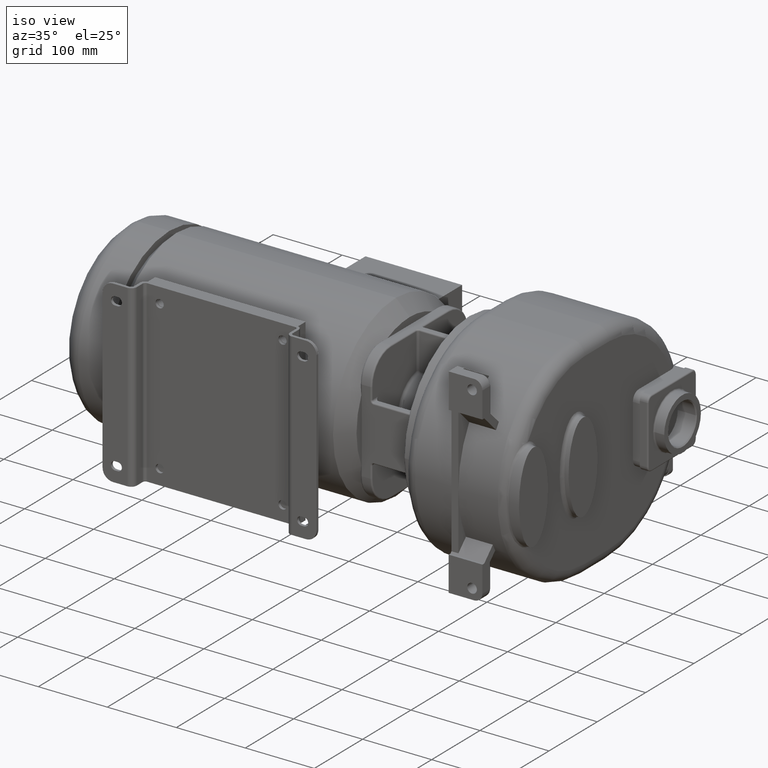
[diagram: clean part render]
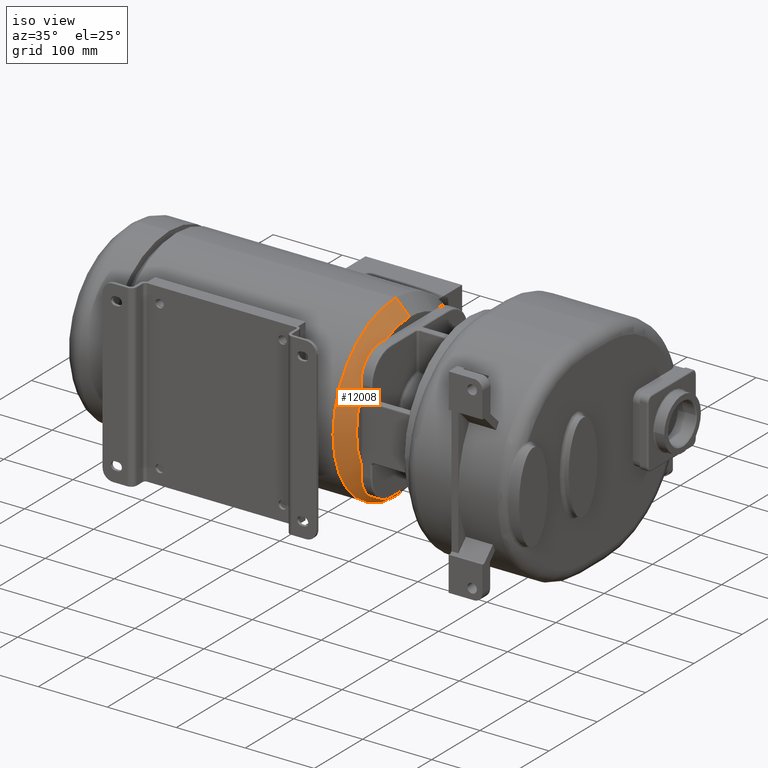
[diagram: same view with one face highlighted and labeled with its STEP entity id]
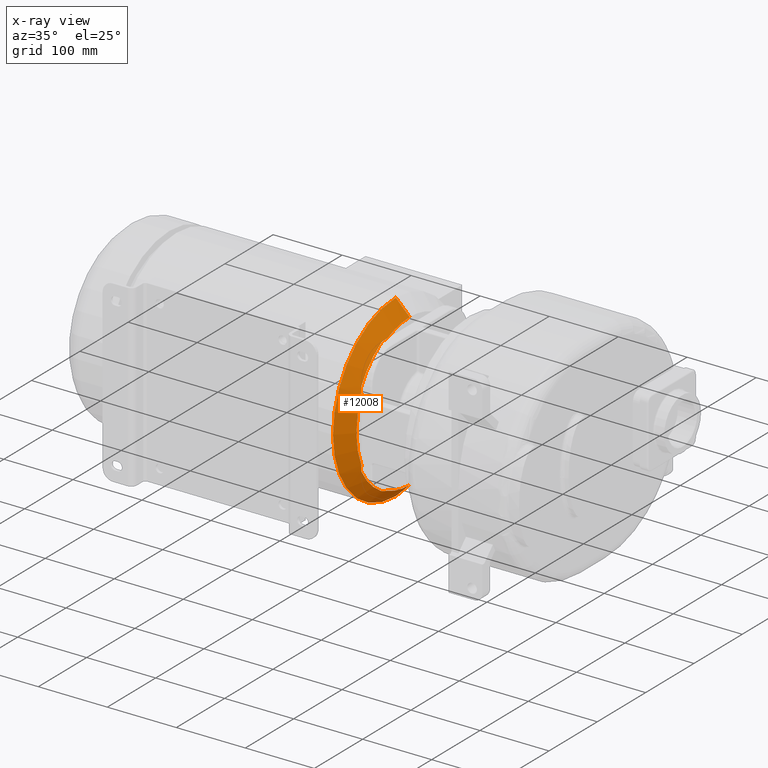
[diagram: x-ray of the same camera — body ghosted, the highlighted face saturated]
A machine part, iso view. The second image highlights one B-rep face of the part: STEP entity #12008.
The next image is the same camera in x-ray: the body ghosted, the highlighted face saturated — about 0% of this face is hidden behind the body in this view.
In plain terms, the highlighted conical surface has half-angle 45 deg.
Its self-contained STEP definition (entity closure, byte-faithful):
#156=DIRECTION('',(-7.071068099192E-1,-3.871631181647E-11,-7.071067524539E-1));
#157=VECTOR('',#156,2.828427124753E1);
#158=CARTESIAN_POINT('',(4.180000071520E2,9.636372921715E-9,-1.100000071512E2));
#159=LINE('',#158,#157);
#285=CARTESIAN_POINT('',(4.18E2,-9.592326932761E-14,0.E0));
#286=DIRECTION('',(1.E0,0.E0,0.E0));
#287=DIRECTION('',(0.E0,-4.199851458710E-1,-9.075309786711E-1));
#288=AXIS2_PLACEMENT_3D('',#285,#286,#287);
#290=CARTESIAN_POINT('',(4.16E2,-9.592326932761E-14,0.E0));
#291=DIRECTION('',(-1.E0,0.E0,0.E0));
#292=DIRECTION('',(0.E0,-4.999205668996E-1,-8.660712596495E-1));
#293=AXIS2_PLACEMENT_3D('',#290,#291,#292);
#295=CARTESIAN_POINT('',(4.16E2,-5.599111441348E1,-9.7E1));
#296=CARTESIAN_POINT('',(4.16E2,-5.590075402214E1,-9.705215854649E1));
#297=CARTESIAN_POINT('',(4.160027102226E2,-5.571323436891E1,-9.715693597073E1));
#298=CARTESIAN_POINT('',(4.160152510660E2,-5.540990141341E1,-9.731583908583E1));
#299=CARTESIAN_POINT('',(4.160361931013E2,-5.508944801677E1,-9.747356397453E1));
#300=CARTESIAN_POINT('',(4.160652862708E2,-5.475410421393E1,-9.762898695167E1));
#301=CARTESIAN_POINT('',(4.161018085251E2,-5.440873979901E1,-9.778009873646E1));
#302=CARTESIAN_POINT('',(4.161467976886E2,-5.404252715975E1,-9.793163244782E1));
#303=CARTESIAN_POINT('',(4.162027804882E2,-5.364026484576E1,-9.808879822E1));
#304=CARTESIAN_POINT('',(4.162728878764E2,-5.318846036465E1,-9.825490101181E1));
#305=CARTESIAN_POINT('',(4.163615858978E2,-5.267083527114E1,-9.843288277170E1));
#306=CARTESIAN_POINT('',(4.164709033224E2,-5.208866735076E1,-9.861869207462E1));
#307=CARTESIAN_POINT('',(4.166011089008E2,-5.145032999669E1,-9.880654583112E1));
#308=CARTESIAN_POINT('',(4.167523372894E2,-5.076234448253E1,-9.899192805085E1));
#309=CARTESIAN_POINT('',(4.169238038325E2,-5.003350238998E1,-9.917035988208E1));
#310=CARTESIAN_POINT('',(4.171147083113E2,-4.927124490254E1,-9.933826747740E1));
#311=CARTESIAN_POINT('',(4.173206651858E2,-4.849529082347E1,-9.949029991339E1));
#312=CARTESIAN_POINT('',(4.175379462591E2,-4.771968980377E1,-9.962374037146E1));
#313=CARTESIAN_POINT('',(4.177650178392E2,-4.694982023212E1,-9.973790730247E1));
#314=CARTESIAN_POINT('',(4.179208330020E2,-4.644735669132E1,-9.980043736419E1));
#315=CARTESIAN_POINT('',(4.18E2,-4.619837505653E1,-9.982842712475E1));
#317=DIRECTION('',(-7.071068099192E-1,3.871589807348E-11,7.071067524539E-1));
#318=VECTOR('',#317,2.828427124753E1);
#319=CARTESIAN_POINT('',(4.180000071520E2,-9.636363708887E-9,1.100000071512E2));
#320=LINE('',#319,#318);
#321=CARTESIAN_POINT('',(4.18E2,-4.619837505653E1,9.982842712475E1));
#322=CARTESIAN_POINT('',(4.179208332888E2,-4.644735578930E1,9.980043746559E1));
#323=CARTESIAN_POINT('',(4.177650184910E2,-4.694981809300E1,9.973790758642E1));
#324=CARTESIAN_POINT('',(4.175379467200E2,-4.771968815463E1,9.962374065704E1));
#325=CARTESIAN_POINT('',(4.173206654040E2,-4.849529012112E1,9.949029999936E1));
#326=CARTESIAN_POINT('',(4.171147105622E2,-4.927123622051E1,9.933826926549E1));
#327=CARTESIAN_POINT('',(4.169238040759E2,-5.003350113406E1,9.917036027392E1));
#328=CARTESIAN_POINT('',(4.167523348459E2,-5.076235497425E1,9.899192544198E1));
#329=CARTESIAN_POINT('',(4.166011051519E2,-5.145034758825E1,9.880654090436E1));
#330=CARTESIAN_POINT('',(4.164709001110E2,-5.208868381295E1,9.861868700329E1));
#331=CARTESIAN_POINT('',(4.163615838312E2,-5.267084691572E1,9.843287887374E1));
#332=CARTESIAN_POINT('',(4.162728868306E2,-5.318846688176E1,9.825489866611E1));
#333=CARTESIAN_POINT('',(4.162027799019E2,-5.364026887094E1,9.808879668484E1));
#334=CARTESIAN_POINT('',(4.161467972917E2,-5.404253019860E1,9.793163122350E1));
#335=CARTESIAN_POINT('',(4.161018081914E2,-5.440874270458E1,9.778009750173E1));
#336=CARTESIAN_POINT('',(4.160652860005E2,-5.475410703125E1,9.762898568099E1));
#337=CARTESIAN_POINT('',(4.160361929458E2,-5.508945012621E1,9.747356295977E1));
#338=CARTESIAN_POINT('',(4.160152510099E2,-5.540990259265E1,9.731583847767E1));
#339=CARTESIAN_POINT('',(4.160027102197E2,-5.571323467068E1,9.715693580014E1));
#340=CARTESIAN_POINT('',(4.16E2,-5.590075408465E1,9.705215851041E1));
#341=CARTESIAN_POINT('',(4.16E2,-5.599111441348E1,9.7E1));
#343=CARTESIAN_POINT('',(4.16E2,-9.592326932761E-14,0.E0));
#344=DIRECTION('',(-1.E0,0.E0,0.E0));
#345=DIRECTION('',(0.E0,-8.660712596495E-1,4.999205668996E-1));
#346=AXIS2_PLACEMENT_3D('',#343,#344,#345);
#348=CARTESIAN_POINT('',(4.16E2,-9.7E1,5.599111441348E1));
#349=CARTESIAN_POINT('',(4.16E2,-9.705215813741E1,5.590075473084E1));
#350=CARTESIAN_POINT('',(4.160027101905E2,-9.715693402098E1,5.571323781676E1));
#351=CARTESIAN_POINT('',(4.160152504211E2,-9.731583209246E1,5.540991497326E1));
#352=CARTESIAN_POINT('',(4.160361913115E2,-9.747355229535E1,5.508947229495E1));
#353=CARTESIAN_POINT('',(4.160652831608E2,-9.762897233105E1,5.475413663095E1));
#354=CARTESIAN_POINT('',(4.161018046916E2,-9.778008455592E1,5.440877317028E1));
#355=CARTESIAN_POINT('',(4.161467931403E2,-9.793161841764E1,5.404256198427E1));
#356=CARTESIAN_POINT('',(4.162027737676E2,-9.808878062333E1,5.364031098283E1));
#357=CARTESIAN_POINT('',(4.162728758643E2,-9.825487406441E1,5.318853522788E1));
#358=CARTESIAN_POINT('',(4.163615621016E2,-9.843283788238E1,5.267096936477E1));
#359=CARTESIAN_POINT('',(4.164708663091E2,-9.861863362263E1,5.208885709195E1));
#360=CARTESIAN_POINT('',(4.166010657220E2,-9.880648908660E1,5.145053261304E1));
#361=CARTESIAN_POINT('',(4.167523092815E2,-9.899189817563E1,5.076246469639E1));
#362=CARTESIAN_POINT('',(4.169238070751E2,-9.917036480493E1,5.003348613311E1));
#363=CARTESIAN_POINT('',(4.171147341305E2,-9.933828796746E1,4.927114534851E1));
#364=CARTESIAN_POINT('',(4.173206675977E2,-9.949030084094E1,4.849528309632E1));
#365=CARTESIAN_POINT('',(4.175379514914E2,-9.962374361989E1,4.771967107110E1));
#366=CARTESIAN_POINT('',(4.177650253674E2,-9.973791058464E1,4.694979552238E1));
#367=CARTESIAN_POINT('',(4.179208363191E2,-9.980043853696E1,4.644734625900E1));
#368=CARTESIAN_POINT('',(4.18E2,-9.982842712475E1,4.619837505653E1));
#370=CARTESIAN_POINT('',(4.18E2,-9.982842712475E1,-4.619837505653E1));
#371=CARTESIAN_POINT('',(4.179208366046E2,-9.980043863789E1,-4.644734536114E1));
#372=CARTESIAN_POINT('',(4.177650260142E2,-9.973791086693E1,-4.694979339884E1));
#373=CARTESIAN_POINT('',(4.175379519316E2,-9.962374389388E1,-4.771966949379E1));
#374=CARTESIAN_POINT('',(4.173206677938E2,-9.949030091393E1,-4.849528247184E1));
#375=CARTESIAN_POINT('',(4.171147363306E2,-9.933828971141E1,-4.927113686854E1));
#376=CARTESIAN_POINT('',(4.169238073981E2,-9.917036526874E1,-5.003348455626E1));
#377=CARTESIAN_POINT('',(4.167523068969E2,-9.899189563502E1,-5.076247492661E1));
#378=CARTESIAN_POINT('',(4.166010620240E2,-9.880648422705E1,-5.145054996532E1));
#379=CARTESIAN_POINT('',(4.164708631366E2,-9.861862861247E1,-5.208887335527E1));
#380=CARTESIAN_POINT('',(4.163615600643E2,-9.843283403870E1,-5.267098084594E1));
#381=CARTESIAN_POINT('',(4.162728748390E2,-9.825487176384E1,-5.318854161862E1));
#382=CARTESIAN_POINT('',(4.162027731954E2,-9.808877912512E1,-5.364031491089E1));
#383=CARTESIAN_POINT('',(4.161467927531E2,-9.793161722345E1,-5.404256494845E1));
#384=CARTESIAN_POINT('',(4.161018043643E2,-9.778008334570E1,-5.440877601845E1));
#385=CARTESIAN_POINT('',(4.160652828947E2,-9.762897108046E1,-5.475413940383E1));
#386=CARTESIAN_POINT('',(4.160361911584E2,-9.747355129602E1,-5.508947437230E1));
#387=CARTESIAN_POINT('',(4.160152503660E2,-9.731583149471E1,-5.540991613222E1));
#388=CARTESIAN_POINT('',(4.160027101878E2,-9.715693385556E1,-5.571323810915E1));
#389=CARTESIAN_POINT('',(4.16E2,-9.705215810305E1,-5.590075479036E1));
#390=CARTESIAN_POINT('',(4.16E2,-9.7E1,-5.599111441348E1));
#414=CARTESIAN_POINT('',(4.18E2,-9.592326932761E-14,0.E0));
#415=DIRECTION('',(1.E0,0.E0,0.E0));
#416=DIRECTION('',(0.E0,-9.075309786711E-1,4.199851458710E-1));
#417=AXIS2_PLACEMENT_3D('',#414,#415,#416);
#441=CARTESIAN_POINT('',(4.18E2,-9.592326932761E-14,0.E0));
#442=DIRECTION('',(1.E0,0.E0,0.E0));
#443=DIRECTION('',(0.E0,0.E0,1.E0));
#444=AXIS2_PLACEMENT_3D('',#441,#442,#443);
#9431=CARTESIAN_POINT('',(3.980000253557E2,0.E0,0.E0));
#9432=DIRECTION('',(1.E0,0.E0,0.E0));
#9433=DIRECTION('',(0.E0,0.E0,1.E0));
#9434=AXIS2_PLACEMENT_3D('',#9431,#9432,#9433);
#10481=CARTESIAN_POINT('',(3.980000253557E2,1.592040838892E-14,1.3E2));
#10482=CARTESIAN_POINT('',(3.980000253557E2,-3.184081677783E-14,-1.3E2));
#10483=VERTEX_POINT('',#10481);
#10484=VERTEX_POINT('',#10482);
#10485=CARTESIAN_POINT('',(4.180000071520E2,9.636372921715E-9,
-1.100000071512E2));
#10486=VERTEX_POINT('',#10485);
#10487=CARTESIAN_POINT('',(4.180000071520E2,-9.636363708887E-9,
1.100000071512E2));
#10488=VERTEX_POINT('',#10487);
#11194=CARTESIAN_POINT('',(4.18E2,-4.619837505653E1,9.982842712475E1));
#11196=VERTEX_POINT('',#11194);
#11198=CARTESIAN_POINT('',(4.18E2,-9.982842712475E1,-4.619837505653E1));
#11199=CARTESIAN_POINT('',(4.18E2,-9.982842712475E1,4.619837505653E1));
#11200=VERTEX_POINT('',#11198);
#11201=VERTEX_POINT('',#11199);
#11203=CARTESIAN_POINT('',(4.18E2,-4.619837505653E1,-9.982842712475E1));
#11205=VERTEX_POINT('',#11203);
#11218=CARTESIAN_POINT('',(4.16E2,-5.599111441348E1,-9.7E1));
#11219=CARTESIAN_POINT('',(4.16E2,-9.7E1,-5.599111441348E1));
#11220=VERTEX_POINT('',#11218);
#11221=VERTEX_POINT('',#11219);
#11222=CARTESIAN_POINT('',(4.16E2,-9.7E1,5.599111441348E1));
#11223=CARTESIAN_POINT('',(4.16E2,-5.599111441348E1,9.7E1));
#11224=VERTEX_POINT('',#11222);
#11225=VERTEX_POINT('',#11223);
#11981=CARTESIAN_POINT('',(4.080000117033E2,-9.592326932761E-14,0.E0));
#11982=DIRECTION('',(-1.E0,0.E0,0.E0));
#11983=DIRECTION('',(0.E0,0.E0,-1.E0));
#11984=AXIS2_PLACEMENT_3D('',#11981,#11982,#11983);
#11985=CONICAL_SURFACE('',#11984,1.200000117020E2,4.500000558760E1);
#11987=ORIENTED_EDGE('',*,*,#11986,.F.);
#11988=ORIENTED_EDGE('',*,*,#11954,.T.);
#11989=ORIENTED_EDGE('',*,*,#11976,.T.);
#11990=ORIENTED_EDGE('',*,*,#11870,.T.);
#11992=ORIENTED_EDGE('',*,*,#11991,.F.);
#11993=ORIENTED_EDGE('',*,*,#11867,.F.);
#11995=ORIENTED_EDGE('',*,*,#11994,.T.);
#11997=ORIENTED_EDGE('',*,*,#11996,.T.);
#11999=ORIENTED_EDGE('',*,*,#11998,.F.);
#12001=ORIENTED_EDGE('',*,*,#12000,.T.);
#12003=ORIENTED_EDGE('',*,*,#12002,.T.);
#12005=ORIENTED_EDGE('',*,*,#12004,.T.);
#12006=EDGE_LOOP('',(#11987,#11988,#11989,#11990,#11992,#11993,#11995,#11997,
#11999,#12001,#12003,#12005));
#12007=FACE_OUTER_BOUND('',#12006,.F.);
#12008=ADVANCED_FACE('',(#12007),#11985,.T.);
#289=CIRCLE('',#288,1.100000214548E2);
#294=CIRCLE('',#293,1.120000218449E2);
#316=B_SPLINE_CURVE_WITH_KNOTS('',3,(#295,#296,#297,#298,#299,#300,#301,#302,
#303,#304,#305,#306,#307,#308,#309,#310,#311,#312,#313,#314,#315),.UNSPECIFIED.,
.F.,.F.,(4,1,1,1,1,1,1,1,1,1,1,1,1,1,1,1,1,1,4),(0.E0,5.555555555556E-2,
1.111111111111E-1,1.666666666667E-1,2.222222222222E-1,2.777777777778E-1,
3.333333333333E-1,3.888888888889E-1,4.444444444444E-1,5.E-1,5.555555555556E-1,
6.111111111111E-1,6.666666666667E-1,7.222222222222E-1,7.777777777778E-1,
8.333333333333E-1,8.888888888889E-1,9.444444444444E-1,1.E0),.UNSPECIFIED.);
#342=B_SPLINE_CURVE_WITH_KNOTS('',3,(#321,#322,#323,#324,#325,#326,#327,#328,
#329,#330,#331,#332,#333,#334,#335,#336,#337,#338,#339,#340,#341),.UNSPECIFIED.,
.F.,.F.,(4,1,1,1,1,1,1,1,1,1,1,1,1,1,1,1,1,1,4),(0.E0,5.555555555556E-2,
1.111111111111E-1,1.666666666667E-1,2.222222222222E-1,2.777777777778E-1,
3.333333333333E-1,3.888888888889E-1,4.444444444444E-1,5.E-1,5.555555555556E-1,
6.111111111111E-1,6.666666666667E-1,7.222222222222E-1,7.777777777778E-1,
8.333333333333E-1,8.888888888889E-1,9.444444444444E-1,1.E0),.UNSPECIFIED.);
#347=CIRCLE('',#346,1.120000218449E2);
#369=B_SPLINE_CURVE_WITH_KNOTS('',3,(#348,#349,#350,#351,#352,#353,#354,#355,
#356,#357,#358,#359,#360,#361,#362,#363,#364,#365,#366,#367,#368),.UNSPECIFIED.,
.F.,.F.,(4,1,1,1,1,1,1,1,1,1,1,1,1,1,1,1,1,1,4),(0.E0,5.555555555556E-2,
1.111111111111E-1,1.666666666667E-1,2.222222222222E-1,2.777777777778E-1,
3.333333333333E-1,3.888888888889E-1,4.444444444444E-1,5.E-1,5.555555555556E-1,
6.111111111111E-1,6.666666666667E-1,7.222222222222E-1,7.777777777778E-1,
8.333333333333E-1,8.888888888889E-1,9.444444444444E-1,1.E0),.UNSPECIFIED.);
#391=B_SPLINE_CURVE_WITH_KNOTS('',3,(#370,#371,#372,#373,#374,#375,#376,#377,
#378,#379,#380,#381,#382,#383,#384,#385,#386,#387,#388,#389,#390),.UNSPECIFIED.,
.F.,.F.,(4,1,1,1,1,1,1,1,1,1,1,1,1,1,1,1,1,1,4),(0.E0,5.555555555556E-2,
1.111111111111E-1,1.666666666667E-1,2.222222222222E-1,2.777777777778E-1,
3.333333333333E-1,3.888888888889E-1,4.444444444444E-1,5.E-1,5.555555555556E-1,
6.111111111111E-1,6.666666666667E-1,7.222222222222E-1,7.777777777778E-1,
8.333333333333E-1,8.888888888889E-1,9.444444444444E-1,1.E0),.UNSPECIFIED.);
#418=CIRCLE('',#417,1.100000214548E2);
#445=CIRCLE('',#444,1.100000214548E2);
#9435=CIRCLE('',#9434,1.3E2);
#11867=EDGE_CURVE('',#10488,#10483,#320,.T.);
#11870=EDGE_CURVE('',#10486,#10484,#159,.T.);
#11954=EDGE_CURVE('',#11220,#11205,#316,.T.);
#11976=EDGE_CURVE('',#11205,#10486,#289,.T.);
#11986=EDGE_CURVE('',#11220,#11221,#294,.T.);
#11991=EDGE_CURVE('',#10483,#10484,#9435,.T.);
#11994=EDGE_CURVE('',#10488,#11196,#445,.T.);
#11996=EDGE_CURVE('',#11196,#11225,#342,.T.);
#11998=EDGE_CURVE('',#11224,#11225,#347,.T.);
#12000=EDGE_CURVE('',#11224,#11201,#369,.T.);
#12002=EDGE_CURVE('',#11201,#11200,#418,.T.);
#12004=EDGE_CURVE('',#11200,#11221,#391,.T.);